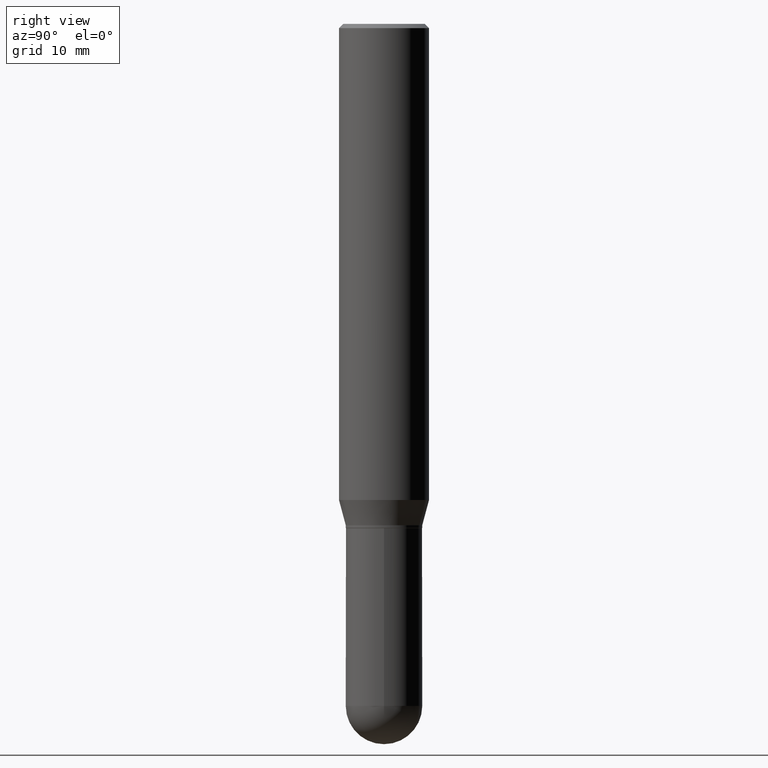
[diagram: clean part render]
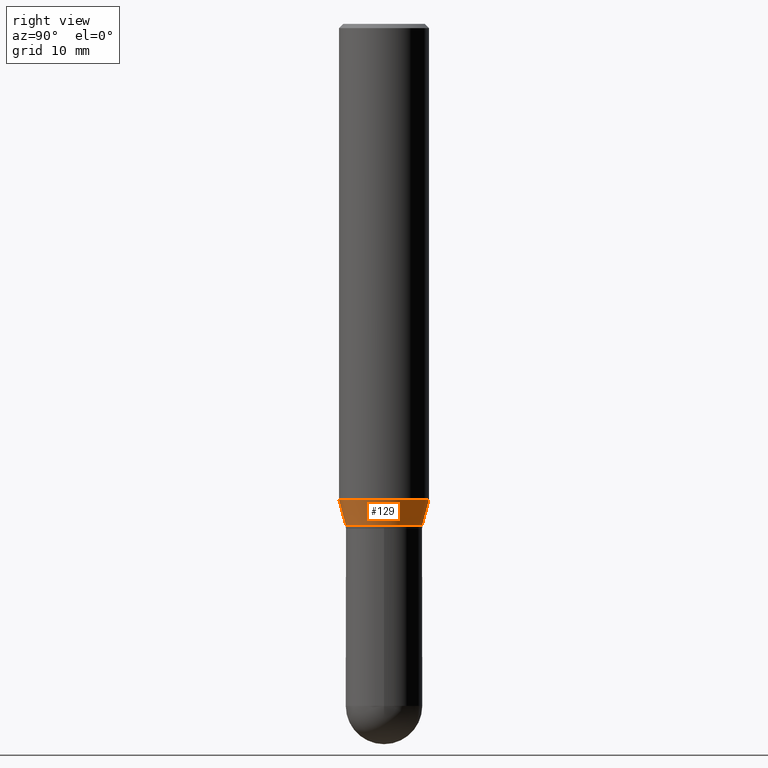
[diagram: same view with one face highlighted and labeled with its STEP entity id]
A machine part, right view. The second image highlights one B-rep face of the part: STEP entity #129.
In plain terms, the highlighted conical surface has half-angle 15 deg.
Its self-contained STEP definition (entity closure, byte-faithful):
#10 = CARTESIAN_POINT ( 'NONE',  ( 1.026911888857325918E-15, 0.1327999999999938396, -1.740000000000000657 ) ) ;
#31 = CARTESIAN_POINT ( 'NONE',  ( 4.254902007838144106E-29, -6.075483581522130008E-15, -1.739999999999999991 ) ) ;
#57 = DIRECTION ( 'NONE',  ( -6.982962677686265133E-15, -1.000000000000000000, 3.496765431890256920E-15 ) ) ;
#59 = VERTEX_POINT ( 'NONE', #507 ) ;
#82 = CIRCLE ( 'NONE', #112, 0.1562500000000000000 ) ;
#112 = AXIS2_PLACEMENT_3D ( 'NONE', #139, #176, #57 ) ;
#127 = LINE ( 'NONE', #135, #396 ) ;
#129 = ADVANCED_FACE ( 'NONE', ( #379 ), #432, .T. ) ;
#135 = CARTESIAN_POINT ( 'NONE',  ( -9.273374435966928350E-16, -0.1328000000000059966, -1.739999999999999547 ) ) ;
#138 = DIRECTION ( 'NONE',  ( -1.807323732225331323E-15, -0.2588190451025183525, 0.9659258262890689783 ) ) ;
#139 = CARTESIAN_POINT ( 'NONE',  ( 4.040893662650484350E-29, -5.769905642217962811E-15, -1.652483408562509748 ) ) ;
#162 = EDGE_CURVE ( 'NONE', #201, #59, #127, .T. ) ;
#170 = LINE ( 'NONE', #462, #212 ) ;
#176 = DIRECTION ( 'NONE',  ( -2.445345981516174728E-29, 3.491657230759845150E-15, 1.000000000000000000 ) ) ;
#201 = VERTEX_POINT ( 'NONE', #245 ) ;
#212 = VECTOR ( 'NONE', #451, 39.37007874015748854 ) ;
#231 = CARTESIAN_POINT ( 'NONE',  ( 4.254902007838144106E-29, -6.075483581522130008E-15, -1.739999999999999991 ) ) ;
#242 = CARTESIAN_POINT ( 'NONE',  ( 1.110223024625197167E-15, 0.1562499999999942824, -1.652483408562510414 ) ) ;
#245 = CARTESIAN_POINT ( 'NONE',  ( -9.273374435966928350E-16, -0.1328000000000059966, -1.739999999999999547 ) ) ;
#247 = EDGE_CURVE ( 'NONE', #366, #410, #170, .T. ) ;
#298 = DIRECTION ( 'NONE',  ( -6.982962677686265133E-15, -1.000000000000000000, 4.114228906120880627E-15 ) ) ;
#325 = EDGE_CURVE ( 'NONE', #59, #410, #82, .T. ) ;
#333 = AXIS2_PLACEMENT_3D ( 'NONE', #231, #390, #350 ) ;
#350 = DIRECTION ( 'NONE',  ( -6.982962677686265133E-15, -1.000000000000000000, 4.114228906120880627E-15 ) ) ;
#357 = AXIS2_PLACEMENT_3D ( 'NONE', #31, #496, #298 ) ;
#358 = ORIENTED_EDGE ( 'NONE', *, *, #500, .T. ) ;
#365 = EDGE_LOOP ( 'NONE', ( #358, #412, #450, #374 ) ) ;
#366 = VERTEX_POINT ( 'NONE', #10 ) ;
#374 = ORIENTED_EDGE ( 'NONE', *, *, #162, .F. ) ;
#379 = FACE_OUTER_BOUND ( 'NONE', #365, .T. ) ;
#390 = DIRECTION ( 'NONE',  ( -2.445345981516174728E-29, 3.491657230759845150E-15, 1.000000000000000000 ) ) ;
#396 = VECTOR ( 'NONE', #138, 39.37007874015748854 ) ;
#410 = VERTEX_POINT ( 'NONE', #242 ) ;
#412 = ORIENTED_EDGE ( 'NONE', *, *, #247, .T. ) ;
#432 = CONICAL_SURFACE ( 'NONE', #357, 0.1327999999999999181, 0.2617993877991504625 ) ;
#450 = ORIENTED_EDGE ( 'NONE', *, *, #325, .F. ) ;
#451 = DIRECTION ( 'NONE',  ( 1.839019923739601499E-15, 0.2588190451025251249, 0.9659258262890670910 ) ) ;
#462 = CARTESIAN_POINT ( 'NONE',  ( 9.436007530894548662E-16, 0.1327999999999938396, -1.740000000000000657 ) ) ;
#480 = CIRCLE ( 'NONE', #333, 0.1327999999999999181 ) ;
#496 = DIRECTION ( 'NONE',  ( -2.445345981516174728E-29, 3.491657230759845150E-15, 1.000000000000000000 ) ) ;
#500 = EDGE_CURVE ( 'NONE', #201, #366, #480, .T. ) ;
#507 = CARTESIAN_POINT ( 'NONE',  ( -1.091087918388438547E-15, -0.1562500000000057454, -1.652483408562509304 ) ) ;